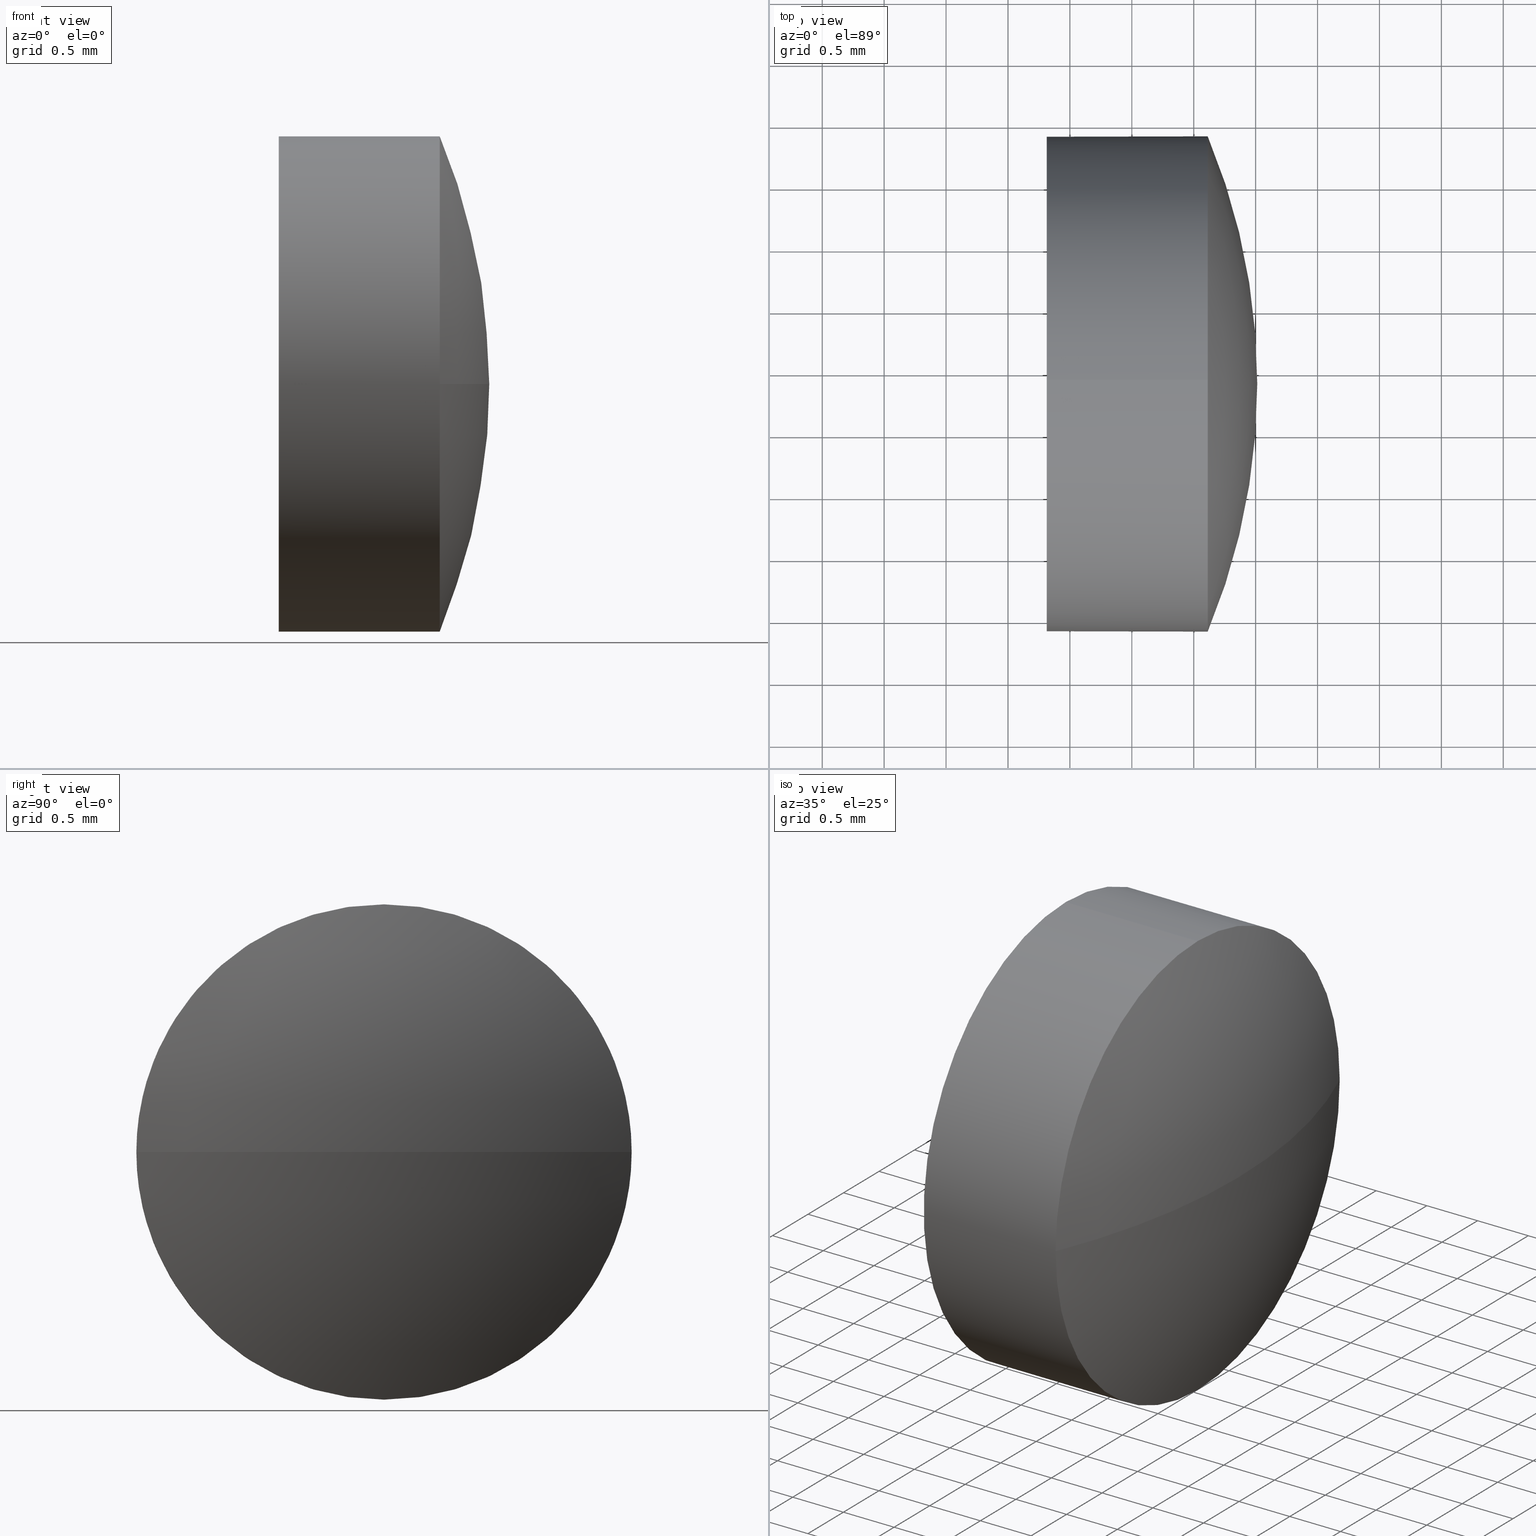
[diagram: canonical four-view strip — front | top / right | iso, engineering-drawing reading convention]
A machine part, canonical four-view strip (front | top / right | iso — engineering-drawing reading convention). The complete STEP part file that produces these views, byte-faithful:
ISO-10303-21;
HEADER;
FILE_DESCRIPTION (( 'STEP AP214' ),
    '1' );
FILE_NAME ('100176.STEP',
    '2019-05-21T01:19:16',
    ( '' ),
    ( '' ),
    'SwSTEP 2.0',
    'SolidWorks 2016',
    '' );
FILE_SCHEMA (( 'AUTOMOTIVE_DESIGN' ));
ENDSEC;

DATA;
#1 = PRODUCT_CONTEXT ( 'NONE', #18, 'mechanical' ) ;
#2 =( NAMED_UNIT ( * ) SI_UNIT ( $, .STERADIAN. ) SOLID_ANGLE_UNIT ( ) );
#3 = MANIFOLD_SOLID_BREP ( '��ת1', #106 ) ;
#4 = CARTESIAN_POINT ( 'NONE',  ( 635.3131078483555700, -28.10203624254958000, 0.0000000000000000000 ) ) ;
#5 = DIRECTION ( 'NONE',  ( 0.0000000000000000000, 0.0000000000000000000, 1.000000000000000000 ) ) ;
#6 =( GEOMETRIC_REPRESENTATION_CONTEXT ( 3 ) GLOBAL_UNCERTAINTY_ASSIGNED_CONTEXT ( ( #108 ) ) GLOBAL_UNIT_ASSIGNED_CONTEXT ( ( #80, #20, #113 ) ) REPRESENTATION_CONTEXT ( 'NONE', 'WORKASPACE' ) );
#7 = ORIENTED_EDGE ( 'NONE', *, *, #151, .T. ) ;
#8 = AXIS2_PLACEMENT_3D ( 'NONE', #101, #144, #15 ) ;
#9 = ORIENTED_EDGE ( 'NONE', *, *, #77, .F. ) ;
#10 = AXIS2_PLACEMENT_3D ( 'NONE', #47, #21, #88 ) ;
#11 = EDGE_LOOP ( 'NONE', ( #82, #141 ) ) ;
#12 = VECTOR ( 'NONE', #16, 1000.000000000000000 ) ;
#13 = PRESENTATION_LAYER_ASSIGNMENT (  '', '', ( #64 ) ) ;
#14 = APPLICATION_CONTEXT ( 'automotive_design' ) ;
#15 = DIRECTION ( 'NONE',  ( 0.0000000000000000000, 1.000000000000000000, 1.224646799147353000E-016 ) ) ;
#16 = DIRECTION ( 'NONE',  ( -1.000000000000000000, -0.0000000000000000000, -0.0000000000000000000 ) ) ;
#17 = DIRECTION ( 'NONE',  ( 0.0000000000000000000, 0.0000000000000000000, 1.000000000000000000 ) ) ;
#18 = APPLICATION_CONTEXT ( 'automotive_design' ) ;
#19 = CARTESIAN_POINT ( 'NONE',  ( 638.8131078483555700, -28.10203624254955600, 0.0000000000000000000 ) ) ;
#20 =( NAMED_UNIT ( * ) PLANE_ANGLE_UNIT ( ) SI_UNIT ( $, .RADIAN. ) );
#21 = DIRECTION ( 'NONE',  ( -1.000000000000000000, -0.0000000000000000000, -0.0000000000000000000 ) ) ;
#22 = CARTESIAN_POINT ( 'NONE',  ( 638.3832237115749400, -28.10203624254955600, -2.000000000000001800 ) ) ;
#23 = AXIS2_PLACEMENT_3D ( 'NONE', #54, #98, #71 ) ;
#24 = SURFACE_STYLE_FILL_AREA ( #44 ) ;
#25 = MECHANICAL_DESIGN_GEOMETRIC_PRESENTATION_REPRESENTATION (  '', ( #64 ), #115 ) ;
#26 = EDGE_CURVE ( 'NONE', #92, #40, #149, .T. ) ;
#27 = ORIENTED_EDGE ( 'NONE', *, *, #157, .F. ) ;
#28 = PRODUCT_DEFINITION ( 'δ֪', '', #173, #162 ) ;
#29 = ADVANCED_BREP_SHAPE_REPRESENTATION ( '100176', ( #3, #61 ), #6 ) ;
#30 = CIRCLE ( 'NONE', #23, 2.000000000000001800 ) ;
#31 = DIRECTION ( 'NONE',  ( -1.000000000000000000, -0.0000000000000000000, -0.0000000000000000000 ) ) ;
#32 = SURFACE_SIDE_STYLE ('',( #154 ) ) ;
#33 = CARTESIAN_POINT ( 'NONE',  ( 640.1131078483556400, -28.10203624254955600, 0.0000000000000000000 ) ) ;
#34 = ORIENTED_EDGE ( 'NONE', *, *, #38, .F. ) ;
#35 = DIRECTION ( 'NONE',  ( -1.000000000000000000, -0.0000000000000000000, -0.0000000000000000000 ) ) ;
#36 = ADVANCED_FACE ( 'NONE', ( #169 ), #174, .T. ) ;
#37 = CARTESIAN_POINT ( 'NONE',  ( 640.1131078483556400, -28.10203624254955600, 2.000000000000001800 ) ) ;
#38 = EDGE_CURVE ( 'NONE', #40, #168, #62, .T. ) ;
#39 =( GEOMETRIC_REPRESENTATION_CONTEXT ( 3 ) GLOBAL_UNCERTAINTY_ASSIGNED_CONTEXT ( ( #93 ) ) GLOBAL_UNIT_ASSIGNED_CONTEXT ( ( #179, #72, #53 ) ) REPRESENTATION_CONTEXT ( 'NONE', 'WORKASPACE' ) );
#40 = VERTEX_POINT ( 'NONE', #181 ) ;
#41 = MECHANICAL_DESIGN_GEOMETRIC_PRESENTATION_REPRESENTATION (  '', ( #184 ), #39 ) ;
#42 = DIRECTION ( 'NONE',  ( -1.000000000000000000, -0.0000000000000000000, -0.0000000000000000000 ) ) ;
#43 = ORIENTED_EDGE ( 'NONE', *, *, #151, .F. ) ;
#44 = FILL_AREA_STYLE ('',( #130 ) ) ;
#45 = DIRECTION ( 'NONE',  ( 0.0000000000000000000, 0.0000000000000000000, 1.000000000000000000 ) ) ;
#46 = CARTESIAN_POINT ( 'NONE',  ( 638.3832237115749400, -28.10203624254955600, 0.0000000000000000000 ) ) ;
#47 = CARTESIAN_POINT ( 'NONE',  ( 640.1131078483556400, -28.10203624254955600, 0.0000000000000000000 ) ) ;
#48 = SHAPE_DEFINITION_REPRESENTATION ( #132, #29 ) ;
#49 = AXIS2_PLACEMENT_3D ( 'NONE', #55, #84, #67 ) ;
#50 = CIRCLE ( 'NONE', #120, 5.199999999999982400 ) ;
#51 = LINE ( 'NONE', #176, #81 ) ;
#52 = SURFACE_STYLE_USAGE ( .BOTH. , #32 ) ;
#53 =( NAMED_UNIT ( * ) SI_UNIT ( $, .STERADIAN. ) SOLID_ANGLE_UNIT ( ) );
#54 = CARTESIAN_POINT ( 'NONE',  ( 638.8131078483555700, -28.10203624254955600, 0.0000000000000000000 ) ) ;
#55 = CARTESIAN_POINT ( 'NONE',  ( 638.8131078483555700, -28.10203624254955600, 0.0000000000000000000 ) ) ;
#56 = DIRECTION ( 'NONE',  ( 0.0000000000000000000, 1.000000000000000000, 0.0000000000000000000 ) ) ;
#57 = CARTESIAN_POINT ( 'NONE',  ( 635.3131078483555700, -28.10203624254958000, 0.0000000000000000000 ) ) ;
#58 = LINE ( 'NONE', #22, #12 ) ;
#59 = EDGE_LOOP ( 'NONE', ( #43, #117, #27, #111 ) ) ;
#60 = EDGE_CURVE ( 'NONE', #183, #158, #139, .T. ) ;
#61 = AXIS2_PLACEMENT_3D ( 'NONE', #131, #163, #156 ) ;
#62 = CIRCLE ( 'NONE', #136, 2.000000000000001800 ) ;
#63 = VERTEX_POINT ( 'NONE', #68 ) ;
#64 = STYLED_ITEM ( 'NONE', ( #185 ), #29 ) ;
#65 = CIRCLE ( 'NONE', #165, 2.000000000000001800 ) ;
#66 = ORIENTED_EDGE ( 'NONE', *, *, #38, .T. ) ;
#67 = DIRECTION ( 'NONE',  ( 0.0000000000000000000, 0.0000000000000000000, -1.000000000000000000 ) ) ;
#68 = CARTESIAN_POINT ( 'NONE',  ( 638.8131078483555700, -28.10203624254955600, 2.000000000000001800 ) ) ;
#69 = EDGE_LOOP ( 'NONE', ( #123, #79, #9, #127, #96 ) ) ;
#70 = PRODUCT_RELATED_PRODUCT_CATEGORY ( 'part', '', ( #83 ) ) ;
#71 = DIRECTION ( 'NONE',  ( 0.0000000000000000000, 0.0000000000000000000, 1.000000000000000000 ) ) ;
#72 =( NAMED_UNIT ( * ) PLANE_ANGLE_UNIT ( ) SI_UNIT ( $, .RADIAN. ) );
#73 = DIRECTION ( 'NONE',  ( -0.0000000000000000000, 0.0000000000000000000, -1.000000000000000000 ) ) ;
#74 = ORIENTED_EDGE ( 'NONE', *, *, #157, .T. ) ;
#75 = EDGE_LOOP ( 'NONE', ( #109, #74, #66, #152, #76 ) ) ;
#76 = ORIENTED_EDGE ( 'NONE', *, *, #171, .F. ) ;
#77 = EDGE_CURVE ( 'NONE', #63, #140, #134, .T. ) ;
#78 = ORIENTED_EDGE ( 'NONE', *, *, #26, .F. ) ;
#79 = ORIENTED_EDGE ( 'NONE', *, *, #167, .T. ) ;
#80 =( LENGTH_UNIT ( ) NAMED_UNIT ( * ) SI_UNIT ( .MILLI., .METRE. ) );
#81 = VECTOR ( 'NONE', #159, 1000.000000000000000 ) ;
#82 = ORIENTED_EDGE ( 'NONE', *, *, #77, .T. ) ;
#83 = PRODUCT ( '100176', '100176', '', ( #1 ) ) ;
#84 = DIRECTION ( 'NONE',  ( 1.000000000000000000, 0.0000000000000000000, 0.0000000000000000000 ) ) ;
#85 =( NAMED_UNIT ( * ) PLANE_ANGLE_UNIT ( ) SI_UNIT ( $, .RADIAN. ) );
#86 = DIRECTION ( 'NONE',  ( 0.0000000000000000000, 0.0000000000000000000, 1.000000000000000000 ) ) ;
#87 = SURFACE_STYLE_USAGE ( .BOTH. , #122 ) ;
#88 = DIRECTION ( 'NONE',  ( 0.0000000000000000000, 0.0000000000000000000, 1.000000000000000000 ) ) ;
#89 = PRESENTATION_STYLE_ASSIGNMENT (( #87 ) ) ;
#90 = COLOUR_RGB ( '',1.000000000000000000, 1.000000000000000000, 1.000000000000000000 ) ;
#91 = FACE_OUTER_BOUND ( 'NONE', #186, .T. ) ;
#92 = VERTEX_POINT ( 'NONE', #119 ) ;
#93 = UNCERTAINTY_MEASURE_WITH_UNIT (LENGTH_MEASURE( 1.000000000000000100E-005 ), #179, 'distance_accuracy_value', 'NONE');
#94 = AXIS2_PLACEMENT_3D ( 'NONE', #4, #73, #97 ) ;
#95 = CYLINDRICAL_SURFACE ( 'NONE', #110, 2.000000000000001800 ) ;
#96 = ORIENTED_EDGE ( 'NONE', *, *, #128, .T. ) ;
#97 = DIRECTION ( 'NONE',  ( 0.0000000000000000000, 1.000000000000000000, 0.0000000000000000000 ) ) ;
#98 = DIRECTION ( 'NONE',  ( -1.000000000000000000, -0.0000000000000000000, -0.0000000000000000000 ) ) ;
#99 = PLANE ( 'NONE',  #49 ) ;
#100 = DIRECTION ( 'NONE',  ( 0.0000000000000000000, 0.0000000000000000000, 1.000000000000000000 ) ) ;
#101 = CARTESIAN_POINT ( 'NONE',  ( 635.3131078483555700, -28.10203624254958000, 0.0000000000000000000 ) ) ;
#102 = ADVANCED_FACE ( 'NONE', ( #180 ), #164, .T. ) ;
#103 = DIRECTION ( 'NONE',  ( 0.0000000000000000000, 0.0000000000000000000, 1.000000000000000000 ) ) ;
#104 = CARTESIAN_POINT ( 'NONE',  ( 638.8131078483555700, -28.10203624254955600, -2.000000000000001800 ) ) ;
#105 = ADVANCED_FACE ( 'NONE', ( #91 ), #155, .T. ) ;
#106 = CLOSED_SHELL ( 'NONE', ( #178, #102, #105, #36, #177 ) ) ;
#107 = UNCERTAINTY_MEASURE_WITH_UNIT (LENGTH_MEASURE( 1.000000000000000100E-005 ), #161, 'distance_accuracy_value', 'NONE');
#108 = UNCERTAINTY_MEASURE_WITH_UNIT (LENGTH_MEASURE( 1.000000000000000100E-005 ), #80, 'distance_accuracy_value', 'NONE');
#109 = ORIENTED_EDGE ( 'NONE', *, *, #167, .F. ) ;
#110 = AXIS2_PLACEMENT_3D ( 'NONE', #114, #42, #100 ) ;
#111 = ORIENTED_EDGE ( 'NONE', *, *, #60, .F. ) ;
#112 = PRESENTATION_LAYER_ASSIGNMENT (  '', '', ( #184 ) ) ;
#113 =( NAMED_UNIT ( * ) SI_UNIT ( $, .STERADIAN. ) SOLID_ANGLE_UNIT ( ) );
#114 = CARTESIAN_POINT ( 'NONE',  ( 638.3832237115749400, -28.10203624254955600, 0.0000000000000000000 ) ) ;
#115 =( GEOMETRIC_REPRESENTATION_CONTEXT ( 3 ) GLOBAL_UNCERTAINTY_ASSIGNED_CONTEXT ( ( #107 ) ) GLOBAL_UNIT_ASSIGNED_CONTEXT ( ( #161, #85, #2 ) ) REPRESENTATION_CONTEXT ( 'NONE', 'WORKASPACE' ) );
#116 = CARTESIAN_POINT ( 'NONE',  ( 640.1131078483556400, -28.10203624254955600, 0.0000000000000000000 ) ) ;
#117 = ORIENTED_EDGE ( 'NONE', *, *, #26, .T. ) ;
#118 = CARTESIAN_POINT ( 'NONE',  ( 640.1131078483556400, -26.10203624254958800, 0.0000000000000000000 ) ) ;
#119 = CARTESIAN_POINT ( 'NONE',  ( 640.5131078483556200, -28.10203624254958000, 0.0000000000000000000 ) ) ;
#120 = AXIS2_PLACEMENT_3D ( 'NONE', #57, #166, #124 ) ;
#121 = DIRECTION ( 'NONE',  ( -1.000000000000000000, -0.0000000000000000000, -0.0000000000000000000 ) ) ;
#122 = SURFACE_SIDE_STYLE ('',( #24 ) ) ;
#123 = ORIENTED_EDGE ( 'NONE', *, *, #60, .T. ) ;
#124 = DIRECTION ( 'NONE',  ( 1.000000000000000000, 0.0000000000000000000, 0.0000000000000000000 ) ) ;
#125 = FACE_OUTER_BOUND ( 'NONE', #69, .T. ) ;
#126 = CIRCLE ( 'NONE', #10, 2.000000000000001800 ) ;
#127 = ORIENTED_EDGE ( 'NONE', *, *, #172, .F. ) ;
#128 = EDGE_CURVE ( 'NONE', #168, #183, #126, .T. ) ;
#129 = FILL_AREA_STYLE ('',( #142 ) ) ;
#130 = FILL_AREA_STYLE_COLOUR ( '', #170 ) ;
#131 = CARTESIAN_POINT ( 'NONE',  ( 0.0000000000000000000, 0.0000000000000000000, 0.0000000000000000000 ) ) ;
#132 = PRODUCT_DEFINITION_SHAPE ( 'NONE', 'NONE',  #28 ) ;
#133 = DIRECTION ( 'NONE',  ( -1.000000000000000000, -0.0000000000000000000, -0.0000000000000000000 ) ) ;
#134 = CIRCLE ( 'NONE', #147, 2.000000000000001800 ) ;
#135 = DIRECTION ( 'NONE',  ( -1.000000000000000000, -0.0000000000000000000, -0.0000000000000000000 ) ) ;
#136 = AXIS2_PLACEMENT_3D ( 'NONE', #116, #31, #86 ) ;
#137 = CARTESIAN_POINT ( 'NONE',  ( 640.1131078483556400, -28.10203624254955600, 0.0000000000000000000 ) ) ;
#138 = ORIENTED_EDGE ( 'NONE', *, *, #128, .F. ) ;
#139 = CIRCLE ( 'NONE', #153, 2.000000000000001800 ) ;
#140 = VERTEX_POINT ( 'NONE', #104 ) ;
#141 = ORIENTED_EDGE ( 'NONE', *, *, #171, .T. ) ;
#142 = FILL_AREA_STYLE_COLOUR ( '', #90 ) ;
#143 = APPLICATION_PROTOCOL_DEFINITION ( 'draft international standard', 'automotive_design', 1998, #14 ) ;
#144 = DIRECTION ( 'NONE',  ( 0.0000000000000000000, 1.224646799147353200E-016, -1.000000000000000000 ) ) ;
#145 = APPLICATION_PROTOCOL_DEFINITION ( 'draft international standard', 'automotive_design', 1998, #18 ) ;
#146 = CARTESIAN_POINT ( 'NONE',  ( 635.3131078483555700, -28.10203624254958000, 0.0000000000000000000 ) ) ;
#147 = AXIS2_PLACEMENT_3D ( 'NONE', #19, #121, #103 ) ;
#148 = DIRECTION ( 'NONE',  ( -0.0000000000000000000, 0.0000000000000000000, -1.000000000000000000 ) ) ;
#149 = CIRCLE ( 'NONE', #8, 5.200000000000009900 ) ;
#150 = AXIS2_PLACEMENT_3D ( 'NONE', #146, #148, #56 ) ;
#151 = EDGE_CURVE ( 'NONE', #92, #183, #50, .T. ) ;
#152 = ORIENTED_EDGE ( 'NONE', *, *, #172, .T. ) ;
#153 = AXIS2_PLACEMENT_3D ( 'NONE', #33, #133, #45 ) ;
#154 = SURFACE_STYLE_FILL_AREA ( #129 ) ;
#155 = SPHERICAL_SURFACE ( 'NONE', #94, 5.200000000000008200 ) ;
#156 = DIRECTION ( 'NONE',  ( 1.000000000000000000, 0.0000000000000000000, 0.0000000000000000000 ) ) ;
#157 = EDGE_CURVE ( 'NONE', #158, #40, #65, .T. ) ;
#158 = VERTEX_POINT ( 'NONE', #182 ) ;
#159 = DIRECTION ( 'NONE',  ( -1.000000000000000000, -0.0000000000000000000, -0.0000000000000000000 ) ) ;
#160 = AXIS2_PLACEMENT_3D ( 'NONE', #46, #35, #17 ) ;
#161 =( LENGTH_UNIT ( ) NAMED_UNIT ( * ) SI_UNIT ( .MILLI., .METRE. ) );
#162 = PRODUCT_DEFINITION_CONTEXT ( 'detailed design', #14, 'design' ) ;
#163 = DIRECTION ( 'NONE',  ( 0.0000000000000000000, 0.0000000000000000000, 1.000000000000000000 ) ) ;
#164 = SPHERICAL_SURFACE ( 'NONE', #150, 5.200000000000008200 ) ;
#165 = AXIS2_PLACEMENT_3D ( 'NONE', #137, #135, #5 ) ;
#166 = DIRECTION ( 'NONE',  ( -0.0000000000000000000, 0.0000000000000000000, 1.000000000000000000 ) ) ;
#167 = EDGE_CURVE ( 'NONE', #158, #140, #58, .T. ) ;
#168 = VERTEX_POINT ( 'NONE', #37 ) ;
#169 = FACE_OUTER_BOUND ( 'NONE', #75, .T. ) ;
#170 = COLOUR_RGB ( '',1.000000000000000000, 1.000000000000000000, 1.000000000000000000 ) ;
#171 = EDGE_CURVE ( 'NONE', #140, #63, #30, .T. ) ;
#172 = EDGE_CURVE ( 'NONE', #168, #63, #51, .T. ) ;
#173 = PRODUCT_DEFINITION_FORMATION_WITH_SPECIFIED_SOURCE ( '�κ�', '', #83, .NOT_KNOWN. ) ;
#174 = CYLINDRICAL_SURFACE ( 'NONE', #160, 2.000000000000001800 ) ;
#175 = FACE_OUTER_BOUND ( 'NONE', #11, .T. ) ;
#176 = CARTESIAN_POINT ( 'NONE',  ( 638.3832237115749400, -28.10203624254955600, 2.000000000000001800 ) ) ;
#177 = ADVANCED_FACE ( 'NONE', ( #175 ), #99, .F. ) ;
#178 = ADVANCED_FACE ( 'NONE', ( #125 ), #95, .T. ) ;
#179 =( LENGTH_UNIT ( ) NAMED_UNIT ( * ) SI_UNIT ( .MILLI., .METRE. ) );
#180 = FACE_OUTER_BOUND ( 'NONE', #59, .T. ) ;
#181 = CARTESIAN_POINT ( 'NONE',  ( 640.1131078483556400, -30.10203624254954800, -2.449293598294668500E-016 ) ) ;
#182 = CARTESIAN_POINT ( 'NONE',  ( 640.1131078483556400, -28.10203624254955600, -2.000000000000001800 ) ) ;
#183 = VERTEX_POINT ( 'NONE', #118 ) ;
#184 = STYLED_ITEM ( 'NONE', ( #89 ), #3 ) ;
#185 = PRESENTATION_STYLE_ASSIGNMENT (( #52 ) ) ;
#186 = EDGE_LOOP ( 'NONE', ( #78, #7, #138, #34 ) ) ;
ENDSEC;
END-ISO-10303-21;
